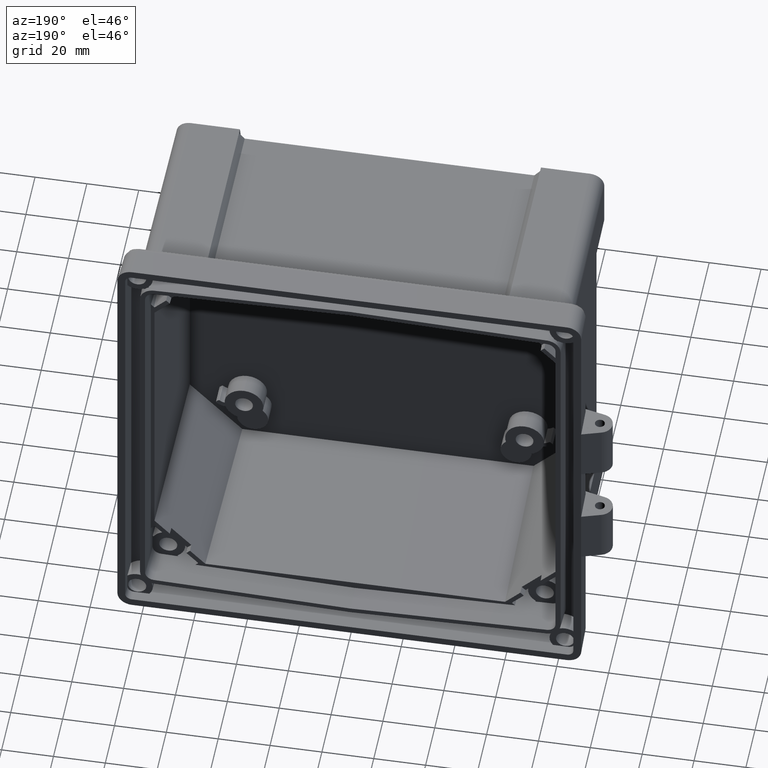
[diagram: clean part render]
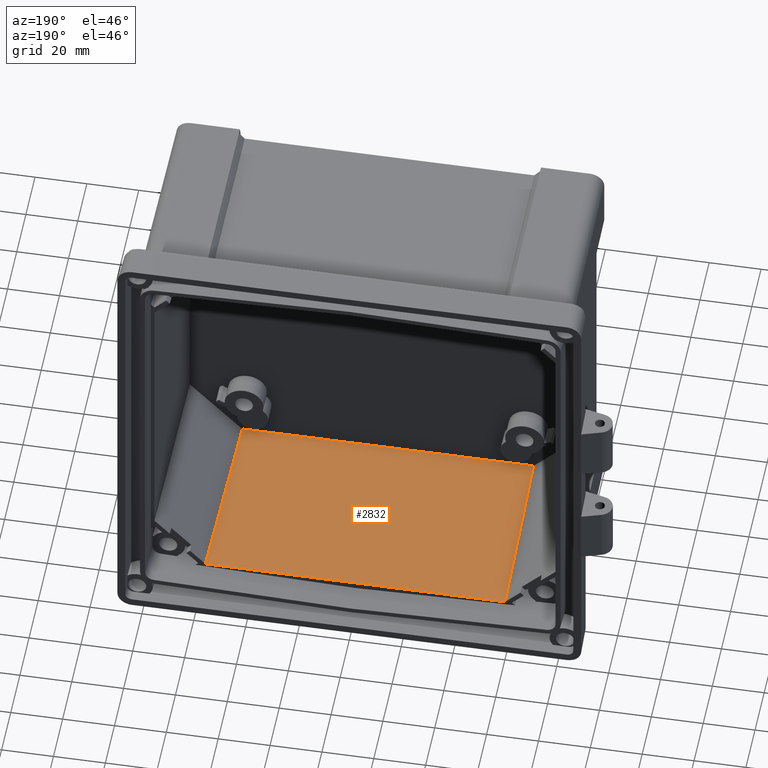
[diagram: same view with one face highlighted and labeled with its STEP entity id]
A machine part, auxiliary view. The second image highlights one B-rep face of the part: STEP entity #2832.
In plain terms, the highlighted planar face has unit normal (-0, -0.014, -0.9999).
Its self-contained STEP definition (entity closure, byte-faithful):
#491 = CARTESIAN_POINT ( 'NONE',  ( 57.80096274610203000, -12.88434796355236000, -76.92676397057282100 ) ) ;
#901 = DIRECTION ( 'NONE',  ( 1.000000000000000000, 0.0000000000000000000, -2.381681712641225500E-016 ) ) ;
#1371 = EDGE_CURVE ( 'NONE', #3693, #8510, #9652, .T. ) ;
#1504 = CARTESIAN_POINT ( 'NONE',  ( 56.16765611959033300, -84.49999999999998600, -75.92675584495219700 ) ) ;
#1649 = EDGE_CURVE ( 'NONE', #3507, #9022, #10712, .T. ) ;
#1762 = LINE ( 'NONE', #12599, #7069 ) ;
#2141 = CARTESIAN_POINT ( 'NONE',  ( -143.3280521722378200, -12.88434796355236000, -76.92676397057275000 ) ) ;
#2734 = LINE ( 'NONE', #3086, #5215 ) ;
#2832 = ADVANCED_FACE ( 'NONE', ( #12822 ), #9765, .F. ) ;
#3086 = CARTESIAN_POINT ( 'NONE',  ( 56.16665505099739200, -84.17027633322419400, -75.93135995503999400 ) ) ;
#3245 = VECTOR ( 'NONE', #901, 1000.000000000000000 ) ;
#3507 = VERTEX_POINT ( 'NONE', #4000 ) ;
#3693 = VERTEX_POINT ( 'NONE', #13855 ) ;
#3885 = DIRECTION ( 'NONE',  ( -1.000000000000000000, 0.0000000000000000000, 1.235389614466582600E-016 ) ) ;
#4000 = CARTESIAN_POINT ( 'NONE',  ( -56.16765611959031900, -83.99999999999998600, -75.93373761567677600 ) ) ;
#4071 = CARTESIAN_POINT ( 'NONE',  ( -57.80096274610205100, -12.88434796355236300, -76.92676397057276500 ) ) ;
#4136 = DIRECTION ( 'NONE',  ( 0.0000000000000000000, 0.9999025240093042400, -0.01396218033913795500 ) ) ;
#5211 = VECTOR ( 'NONE', #8595, 1000.000000000000100 ) ;
#5215 = VECTOR ( 'NONE', #8851, 1000.000000000000100 ) ;
#5224 = VECTOR ( 'NONE', #3885, 1000.000000000000000 ) ;
#5259 = EDGE_LOOP ( 'NONE', ( #9135, #6500, #12149, #7057, #7077, #10098 ) ) ;
#6500 = ORIENTED_EDGE ( 'NONE', *, *, #10542, .F. ) ;
#7057 = ORIENTED_EDGE ( 'NONE', *, *, #13663, .T. ) ;
#7069 = VECTOR ( 'NONE', #9191, 1000.000000000000100 ) ;
#7077 = ORIENTED_EDGE ( 'NONE', *, *, #8382, .F. ) ;
#7289 = CARTESIAN_POINT ( 'NONE',  ( -56.16471657839281300, -84.49999999999998600, -75.92675584495219700 ) ) ;
#8382 = EDGE_CURVE ( 'NONE', #9526, #8999, #1762, .T. ) ;
#8510 = VERTEX_POINT ( 'NONE', #7289 ) ;
#8595 = DIRECTION ( 'NONE',  ( -0.02295861600695002500, 0.9996389659397153500, -0.01395850013510898300 ) ) ;
#8851 = DIRECTION ( 'NONE',  ( 0.005878407756808458300, 0.9998852477053511400, -0.01396193910075896700 ) ) ;
#8999 = VERTEX_POINT ( 'NONE', #14387 ) ;
#9022 = VERTEX_POINT ( 'NONE', #4071 ) ;
#9135 = ORIENTED_EDGE ( 'NONE', *, *, #1649, .F. ) ;
#9191 = DIRECTION ( 'NONE',  ( -0.02295861600695002200, -0.9996389659397153500, 0.01395850013510899000 ) ) ;
#9497 = CARTESIAN_POINT ( 'NONE',  ( -56.16377429674002300, -84.66027699383455700, -75.92451781050542100 ) ) ;
#9526 = VERTEX_POINT ( 'NONE', #491 ) ;
#9591 = AXIS2_PLACEMENT_3D ( 'NONE', #10927, #9629, #4136 ) ;
#9629 = DIRECTION ( 'NONE',  ( -2.381449555856764200E-016, -0.01396218033913795700, -0.9999025240093043500 ) ) ;
#9652 = LINE ( 'NONE', #1504, #5224 ) ;
#9765 = PLANE ( 'NONE',  #9591 ) ;
#10098 = ORIENTED_EDGE ( 'NONE', *, *, #14143, .F. ) ;
#10335 = LINE ( 'NONE', #2141, #3245 ) ;
#10542 = EDGE_CURVE ( 'NONE', #8510, #3507, #13238, .T. ) ;
#10712 = LINE ( 'NONE', #12912, #5211 ) ;
#10927 = CARTESIAN_POINT ( 'NONE',  ( -143.3280521722378200, -83.99999999999998600, -75.93373761567676200 ) ) ;
#11891 = DIRECTION ( 'NONE',  ( -0.005878407756808457500, 0.9998852477053511400, -0.01396193910075896700 ) ) ;
#12149 = ORIENTED_EDGE ( 'NONE', *, *, #1371, .F. ) ;
#12549 = VECTOR ( 'NONE', #11891, 1000.000000000000100 ) ;
#12599 = CARTESIAN_POINT ( 'NONE',  ( 56.21359819429579100, -81.99964039479610300, -75.96166971993731900 ) ) ;
#12822 = FACE_OUTER_BOUND ( 'NONE', #5259, .T. ) ;
#12912 = CARTESIAN_POINT ( 'NONE',  ( -56.21359819429577700, -81.99964039479610300, -75.96166971993730500 ) ) ;
#13238 = LINE ( 'NONE', #9497, #12549 ) ;
#13663 = EDGE_CURVE ( 'NONE', #3693, #8999, #2734, .T. ) ;
#13855 = CARTESIAN_POINT ( 'NONE',  ( 56.16471657839282700, -84.49999999999998600, -75.92675584495219700 ) ) ;
#14143 = EDGE_CURVE ( 'NONE', #9022, #9526, #10335, .T. ) ;
#14387 = CARTESIAN_POINT ( 'NONE',  ( 56.16765611959033300, -83.99999999999998600, -75.93373761567679000 ) ) ;